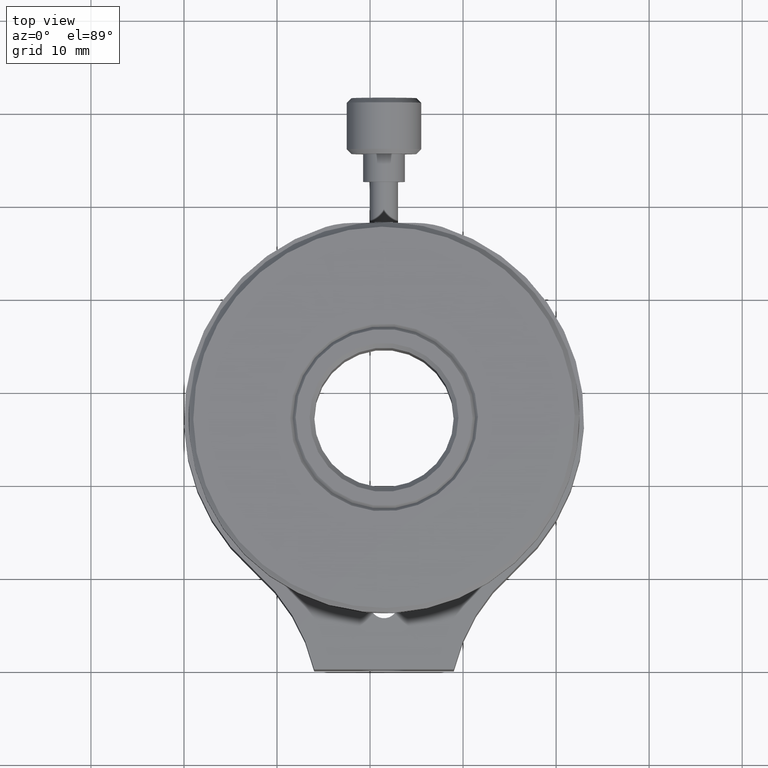
[diagram: clean part render]
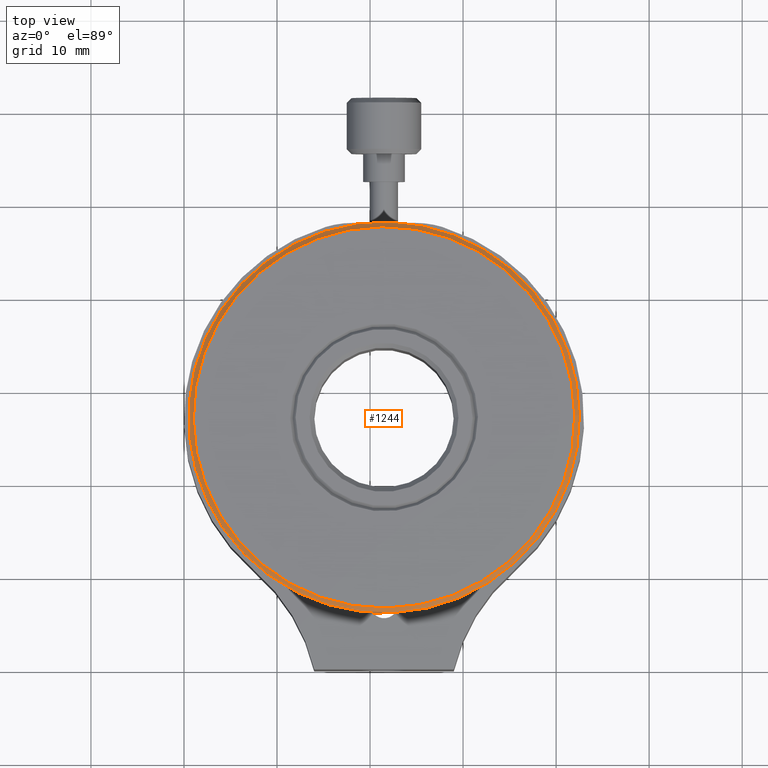
[diagram: same view with one face highlighted and labeled with its STEP entity id]
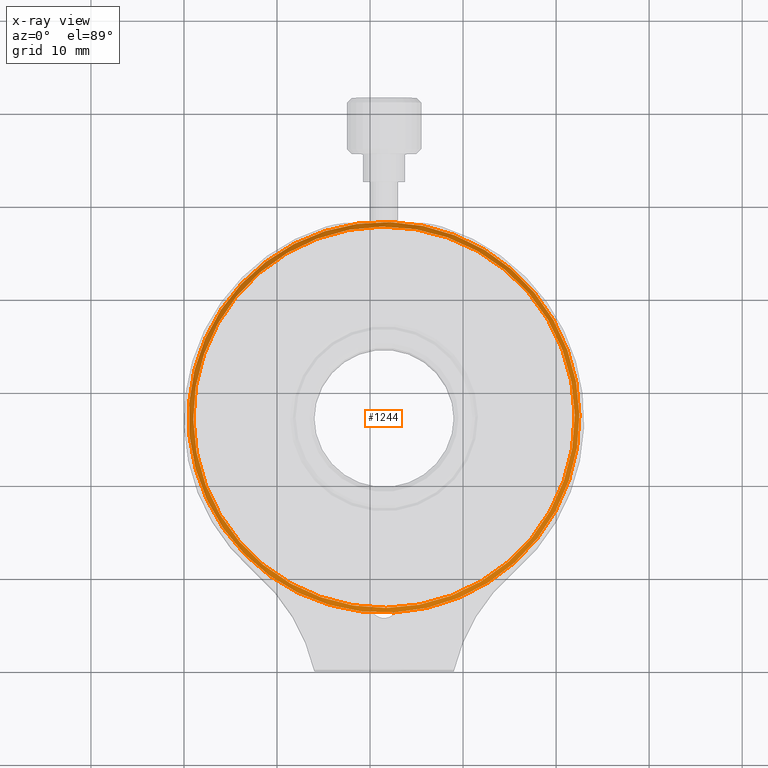
[diagram: x-ray of the same camera — body ghosted, the highlighted face saturated]
A machine part, top view. The second image highlights one B-rep face of the part: STEP entity #1244.
The next image is the same camera in x-ray: the body ghosted, the highlighted face saturated — about 0% of this face is hidden behind the body in this view.
In plain terms, the highlighted conical surface has half-angle 45 deg.
Its self-contained STEP definition (entity closure, byte-faithful):
#52=CONICAL_SURFACE('',#1363,20.75,0.785398163397447);
#142=FACE_OUTER_BOUND('',#222,.T.);
#222=EDGE_LOOP('',(#866,#867,#868,#869));
#308=LINE('',#2316,#358);
#358=VECTOR('',#1592,20.75);
#419=CIRCLE('',#1364,20.5);
#420=CIRCLE('',#1365,21.);
#522=VERTEX_POINT('',#2313);
#523=VERTEX_POINT('',#2315);
#658=EDGE_CURVE('',#522,#522,#419,.T.);
#659=EDGE_CURVE('',#522,#523,#308,.T.);
#660=EDGE_CURVE('',#523,#523,#420,.T.);
#866=ORIENTED_EDGE('',*,*,#658,.T.);
#867=ORIENTED_EDGE('',*,*,#659,.T.);
#868=ORIENTED_EDGE('',*,*,#660,.T.);
#869=ORIENTED_EDGE('',*,*,#659,.F.);
#1244=ADVANCED_FACE('',(#142),#52,.T.);
#1363=AXIS2_PLACEMENT_3D('',#2312,#1588,#1589);
#1364=AXIS2_PLACEMENT_3D('',#2314,#1590,#1591);
#1365=AXIS2_PLACEMENT_3D('',#2317,#1593,#1594);
#1588=DIRECTION('center_axis',(-1.01991387558549E-16,6.08246323038323E-17,
-1.));
#1589=DIRECTION('ref_axis',(-0.999934682368883,-0.0114293917528559,1.01289537171895E-16));
#1590=DIRECTION('center_axis',(-1.01991387558549E-16,6.08246323038323E-17,
-1.));
#1591=DIRECTION('ref_axis',(-0.999934682368883,-0.0114293917528559,1.01289537171895E-16));
#1592=DIRECTION('',(0.707060594646653,0.0080818004132821,-0.707106781186549));
#1593=DIRECTION('center_axis',(1.01991387558549E-16,-6.08246323038323E-17,
1.));
#1594=DIRECTION('ref_axis',(-0.999934682368883,-0.0114293917528559,1.01289537171895E-16));
#2312=CARTESIAN_POINT('Origin',(21.5,27.,37.7488721972855));
#2313=CARTESIAN_POINT('',(41.9986609885621,27.2343025309336,37.9988721972855));
#2314=CARTESIAN_POINT('Origin',(21.5,27.,37.9988721972855));
#2315=CARTESIAN_POINT('',(42.4986283297466,27.24001722681,37.4988721972855));
#2316=CARTESIAN_POINT('',(42.2486446591543,27.2371598788718,37.7488721972855));
#2317=CARTESIAN_POINT('Origin',(21.5,27.,37.4988721972855));